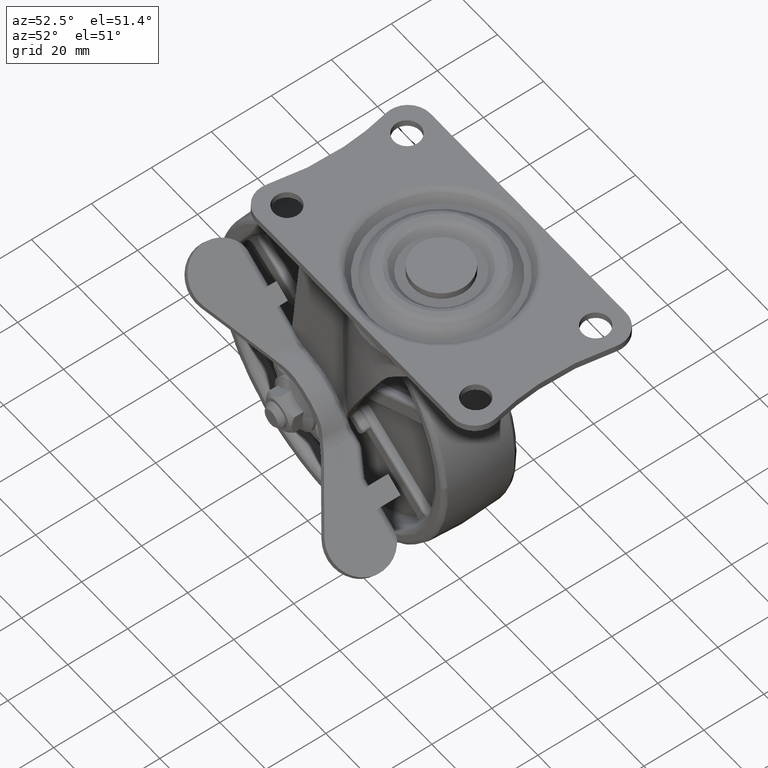
[diagram: clean part render]
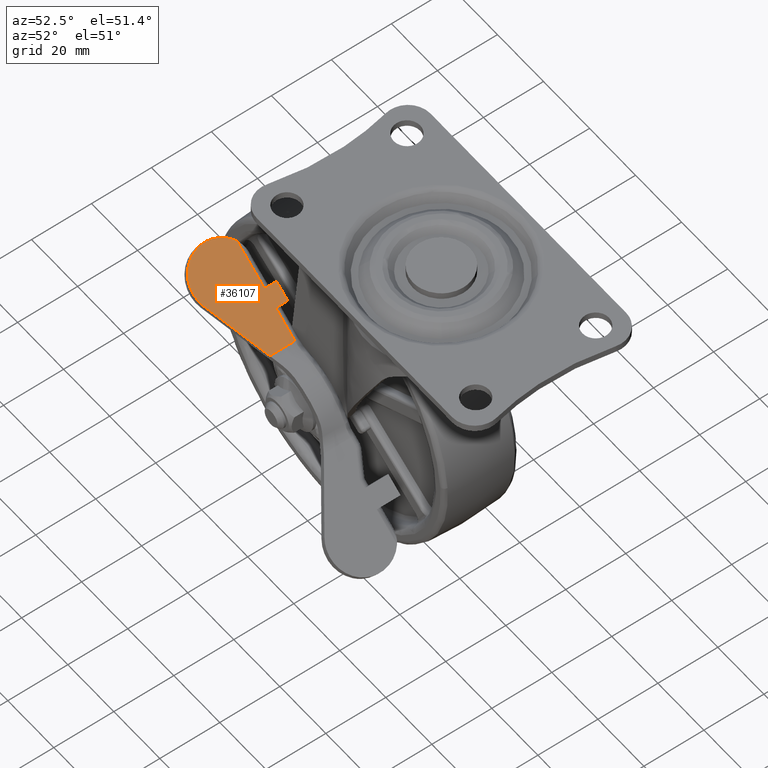
[diagram: same view with one face highlighted and labeled with its STEP entity id]
A machine part, auxiliary view. The second image highlights one B-rep face of the part: STEP entity #36107.
In plain terms, the highlighted face is a freeform B-spline surface patch.
Its self-contained STEP definition (entity closure, byte-faithful):
#34070=CARTESIAN_POINT('',(-14.759762288678299,-20.299994999999999,12.299907050476699));
#34071=VERTEX_POINT('',#34070);
#34091=CARTESIAN_POINT('',(-24.822640743455850,-20.299994999999999,12.299906927185260));
#34092=VERTEX_POINT('',#34091);
#34104=CARTESIAN_POINT('',(-14.759762288678299,-20.299994999999999,12.299907050476699));
#34105=CARTESIAN_POINT('',(-24.822640743455850,-20.299994999999999,12.299906927185260));
#34106=QUASI_UNIFORM_CURVE('',1,(#34104,#34105),.UNSPECIFIED.,.F.,.U.);
#34107=EDGE_CURVE('',#34071,#34092,#34106,.T.);
#34390=CARTESIAN_POINT('',(-30.822632127542452,-20.299994999999999,12.299906853672740));
#34391=VERTEX_POINT('',#34390);
#34409=CARTESIAN_POINT('',(-45.332837975471200,-20.299994999999999,12.299906675892180));
#34410=VERTEX_POINT('',#34409);
#34441=CARTESIAN_POINT('',(-30.822632127542452,-20.299994999999999,12.299906853672740));
#34442=CARTESIAN_POINT('',(-45.332837975471200,-20.299994999999999,12.299906675892180));
#34443=QUASI_UNIFORM_CURVE('',1,(#34441,#34442),.UNSPECIFIED.,.F.,.U.);
#34444=EDGE_CURVE('',#34391,#34410,#34443,.T.);
#35129=CARTESIAN_POINT('',(-30.822632127542452,-16.299994999999999,12.299906853672740));
#35130=VERTEX_POINT('',#35129);
#35136=CARTESIAN_POINT('',(-24.822640743455850,-16.299994999999999,12.299906927185260));
#35137=VERTEX_POINT('',#35136);
#35138=CARTESIAN_POINT('',(-30.822632127542452,-16.299994999999999,12.299906853672740));
#35139=CARTESIAN_POINT('',(-24.822640743455850,-16.299994999999999,12.299906927185260));
#35140=QUASI_UNIFORM_CURVE('',1,(#35138,#35139),.UNSPECIFIED.,.F.,.U.);
#35141=EDGE_CURVE('',#35130,#35137,#35140,.T.);
#35163=CARTESIAN_POINT('',(-24.822640743455850,-16.299994999999999,12.299906927185260));
#35164=CARTESIAN_POINT('',(-24.822640743455850,-20.299994999999999,12.299906927185260));
#35165=QUASI_UNIFORM_CURVE('',1,(#35163,#35164),.UNSPECIFIED.,.F.,.U.);
#35166=EDGE_CURVE('',#35137,#34092,#35165,.T.);
#35203=CARTESIAN_POINT('',(-30.822632127542452,-16.299994999999999,12.299906853672740));
#35204=CARTESIAN_POINT('',(-30.822632127542452,-20.299994999999999,12.299906853672740));
#35205=QUASI_UNIFORM_CURVE('',1,(#35203,#35204),.UNSPECIFIED.,.F.,.U.);
#35206=EDGE_CURVE('',#35130,#34391,#35205,.T.);
#35494=CARTESIAN_POINT('',(-14.822149646202201,-28.685122874413150,12.299906926097160));
#35495=VERTEX_POINT('',#35494);
#35496=CARTESIAN_POINT('',(-35.000758835147941,-37.877680910682898,12.299906926097160));
#35497=VERTEX_POINT('',#35496);
#35498=CARTESIAN_POINT('',(-14.822149646202201,-28.685122874413150,12.299906926097160));
#35499=CARTESIAN_POINT('',(-35.000758835147941,-37.877680910682898,12.299906926097160));
#35500=QUASI_UNIFORM_CURVE('',1,(#35498,#35499),.UNSPECIFIED.,.F.,.U.);
#35501=EDGE_CURVE('',#35495,#35497,#35500,.T.);
#35541=CARTESIAN_POINT('',(-14.759762288678299,-28.656830634031600,12.299907050476680));
#35542=VERTEX_POINT('',#35541);
#35551=CARTESIAN_POINT('',(-14.822149646202201,-28.685122874413150,12.299906926097160));
#35552=CARTESIAN_POINT('',(-14.759762288678299,-28.656830634031600,12.299907050476680));
#35553=QUASI_UNIFORM_CURVE('',1,(#35551,#35552),.UNSPECIFIED.,.F.,.U.);
#35554=EDGE_CURVE('',#35495,#35542,#35553,.T.);
#35873=CARTESIAN_POINT('',(-35.000758835147941,-37.877680910682898,12.299906926097160));
#35874=CARTESIAN_POINT('',(-35.570828806837142,-38.137437051344101,12.299906914588680));
#35875=CARTESIAN_POINT('',(-36.833037676277122,-38.577925657709343,12.299906888855899));
#35876=CARTESIAN_POINT('',(-38.586770436897240,-38.826803304303262,12.299906852424190));
#35877=CARTESIAN_POINT('',(-40.430149956754640,-38.780328958096831,12.299906813554760));
#35878=CARTESIAN_POINT('',(-42.478425565106242,-38.383772606060909,12.299906769720630));
#35879=CARTESIAN_POINT('',(-44.811685595172122,-37.308134765347042,12.299906718622600));
#35880=CARTESIAN_POINT('',(-46.833194004238763,-35.600547232029029,12.299906672903051));
#35881=CARTESIAN_POINT('',(-48.328084043045529,-33.520137011771311,12.299906637566680));
#35882=CARTESIAN_POINT('',(-49.182286260487501,-31.396463269297350,12.299906615629011));
#35883=CARTESIAN_POINT('',(-49.517282572752727,-29.379422353470598,12.299906604813460));
#35884=CARTESIAN_POINT('',(-49.503478426088243,-27.454651756984440,12.299906601509971));
#35885=CARTESIAN_POINT('',(-49.165472881327148,-25.754891786340011,12.299906605445670));
#35886=CARTESIAN_POINT('',(-48.543962882956720,-24.144402474024439,12.299906615513891));
#35887=CARTESIAN_POINT('',(-47.486854954994357,-22.260167487169461,12.299906634235130));
#35888=CARTESIAN_POINT('',(-46.278856726995024,-20.996487551343989,12.299906657289901));
#35889=CARTESIAN_POINT('',(-45.332837975471200,-20.299994999999999,12.299906675892180));
#35890=B_SPLINE_CURVE_WITH_KNOTS('',3,(#35873,#35874,#35875,#35876,#35877,#35878,#35879,#35880,#35881,#35882,#35883,#35884,#35885,#35886,#35887,#35888,#35889),.UNSPECIFIED.,.F.,.U.,(4,1,1,1,1,1,1,1,1,1,1,1,1,1,4),(0.000000829051917,1.879394101480170,3.993748117418530,5.285863266314415,7.400272345862369,10.219487863098180,12.921134384390029,15.270277789251470,17.854510096999281,19.733980856399661,21.378540647664440,23.610405581548459,24.902519571866591,26.547044805020018,30.070930337935501),.UNSPECIFIED.);
#35891=EDGE_CURVE('',#35497,#34410,#35890,.T.);
#36087=CARTESIAN_POINT('',(-51.225678101256491,-39.916801059615572,12.299906603692531));
#36088=CARTESIAN_POINT('',(-13.024945703483461,-39.916801059615572,12.299907071731850));
#36089=CARTESIAN_POINT('',(-51.225678101256491,-15.176457419490500,12.299906603692531));
#36090=CARTESIAN_POINT('',(-13.024945703483461,-15.176457419490500,12.299907071731850));
#36091=B_SPLINE_SURFACE_WITH_KNOTS('',1,1,((#36087,#36089),(#36088,#36090)),.UNSPECIFIED.,.F.,.F.,.U.,(2,2),(2,2),(0.0,38.200732397773038),(0.0,24.740343640125069),.UNSPECIFIED.);
#36092=ORIENTED_EDGE('',*,*,#35206,.T.);
#36093=ORIENTED_EDGE('',*,*,#34444,.T.);
#36094=ORIENTED_EDGE('',*,*,#35891,.F.);
#36095=ORIENTED_EDGE('',*,*,#35501,.F.);
#36096=ORIENTED_EDGE('',*,*,#35554,.T.);
#36097=CARTESIAN_POINT('',(-14.759762288678299,-20.299994999999999,12.299907050476699));
#36098=CARTESIAN_POINT('',(-14.759762288678299,-28.656830634031600,12.299907050476680));
#36099=QUASI_UNIFORM_CURVE('',1,(#36097,#36098),.UNSPECIFIED.,.F.,.U.);
#36100=EDGE_CURVE('',#34071,#35542,#36099,.T.);
#36101=ORIENTED_EDGE('',*,*,#36100,.F.);
#36102=ORIENTED_EDGE('',*,*,#34107,.T.);
#36103=ORIENTED_EDGE('',*,*,#35166,.F.);
#36104=ORIENTED_EDGE('',*,*,#35141,.F.);
#36105=EDGE_LOOP('',(#36092,#36093,#36094,#36095,#36096,#36101,#36102,#36103,#36104));
#36106=FACE_OUTER_BOUND('',#36105,.T.);
#36107=ADVANCED_FACE('',(#36106),#36091,.T.);